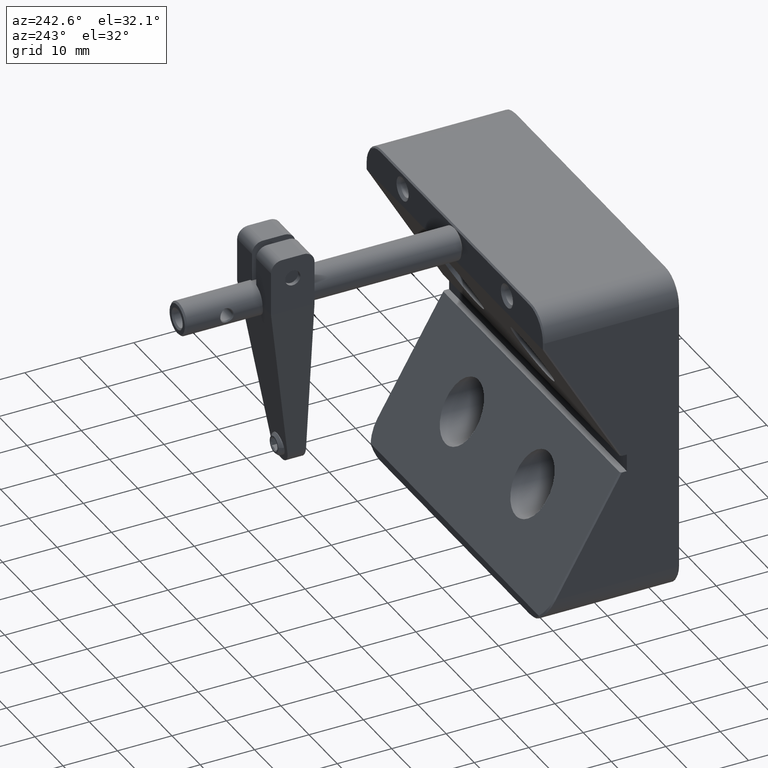
[diagram: clean part render]
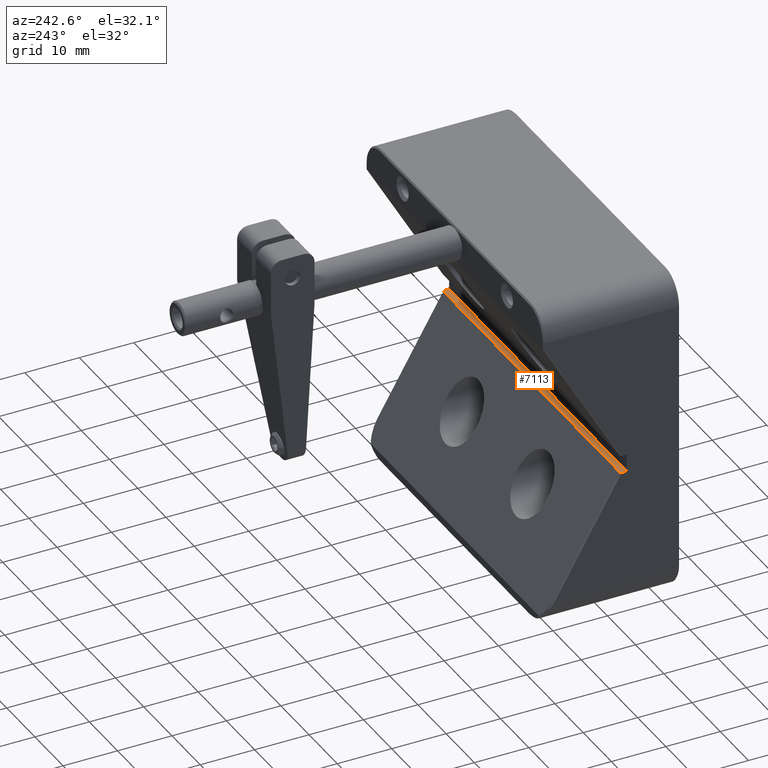
[diagram: same view with one face highlighted and labeled with its STEP entity id]
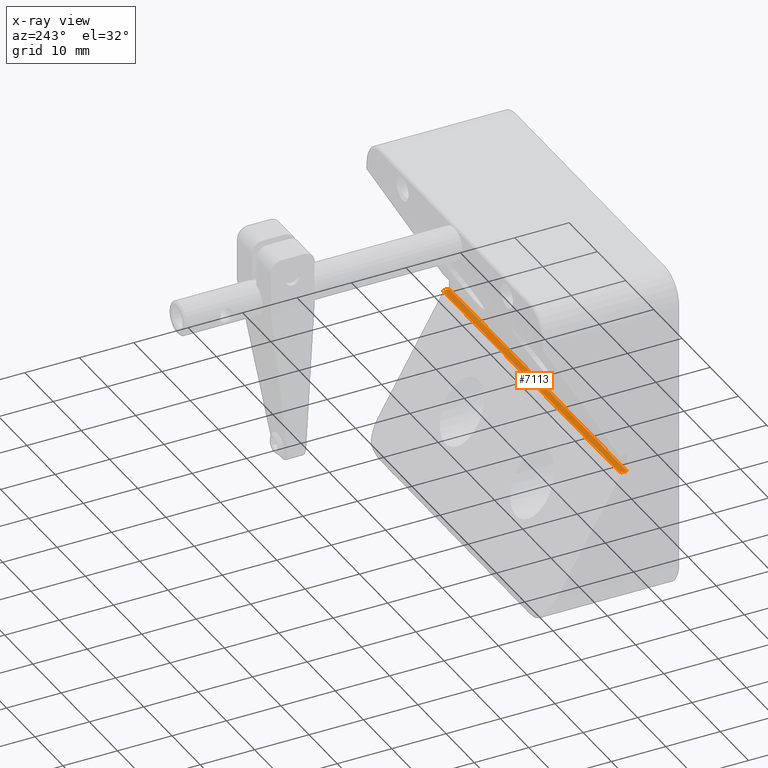
[diagram: x-ray of the same camera — body ghosted, the highlighted face saturated]
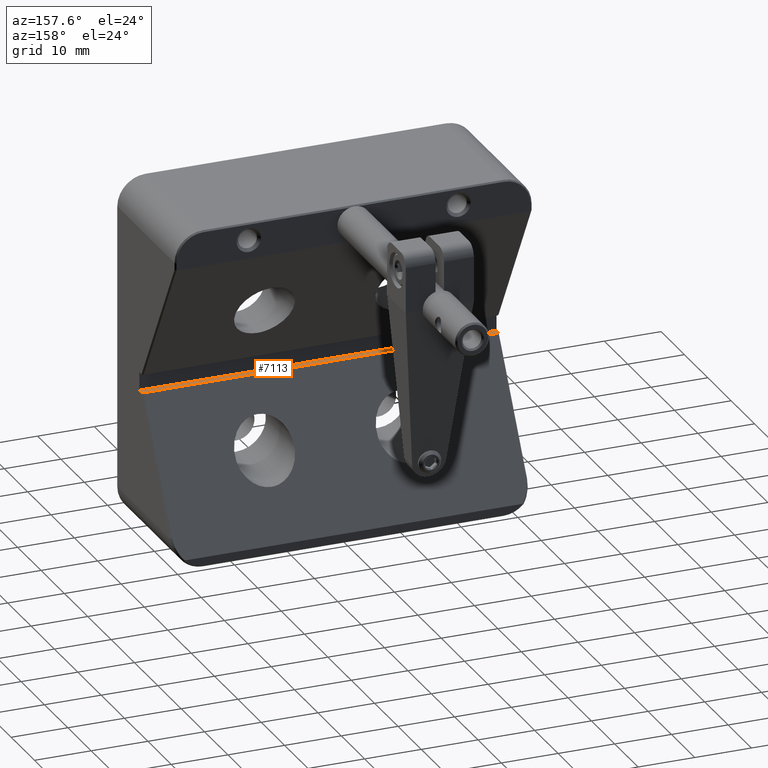
[diagram: same view with one face highlighted and labeled with its STEP entity id]
A machine part, auxiliary view. The second image highlights one B-rep face of the part: STEP entity #7113.
The next image is the same camera in x-ray: the body ghosted, the highlighted face saturated — about 0% of this face is hidden behind the body in this view.
A second angle (auxiliary view) of the same face is appended — the face is thin or edge-on in the first view.
In plain terms, the highlighted planar face has unit normal (0, 0, -1).
Its self-contained STEP definition (entity closure, byte-faithful):
#3 = VERTEX_POINT ( 'NONE', #8503 ) ;
#359 = AXIS2_PLACEMENT_3D ( 'NONE', #7832, #8693, #8662 ) ;
#388 = EDGE_CURVE ( 'NONE', #9334, #4871, #1703, .T. ) ;
#406 = DIRECTION ( 'NONE',  ( -0.6546536707079887440, 0.7559289460184445142, 1.639159611035749782E-15 ) ) ;
#454 = ORIENTED_EDGE ( 'NONE', *, *, #2689, .F. ) ;
#459 = CARTESIAN_POINT ( 'NONE',  ( 31.50000000000000711, -1.876021702821597081, -3.900000000000001243 ) ) ;
#703 = CARTESIAN_POINT ( 'NONE',  ( -31.50000000000000711, -1.876021702821580206, -3.900000000000001243 ) ) ;
#798 = EDGE_CURVE ( 'NONE', #3614, #9334, #5182, .T. ) ;
#900 = CARTESIAN_POINT ( 'NONE',  ( -36.98571428571426623, -8.210378941930512653, -3.900000000000012790 ) ) ;
#1280 = LINE ( 'NONE', #3841, #5951 ) ;
#1381 = CARTESIAN_POINT ( 'NONE',  ( 31.50000000000000711, -1.587346568226877030, -3.900000000000000799 ) ) ;
#1691 = VECTOR ( 'NONE', #6457, 1000.000000000000000 ) ;
#1703 = LINE ( 'NONE', #4897, #3231 ) ;
#1817 = LINE ( 'NONE', #900, #3235 ) ;
#2689 = EDGE_CURVE ( 'NONE', #3, #4871, #1280, .T. ) ;
#3133 = EDGE_LOOP ( 'NONE', ( #454, #8026, #9129, #7815, #9316, #8019 ) ) ;
#3231 = VECTOR ( 'NONE', #406, 1000.000000000000114 ) ;
#3235 = VECTOR ( 'NONE', #6840, 1000.000000000000000 ) ;
#3614 = VERTEX_POINT ( 'NONE', #8330 ) ;
#3841 = CARTESIAN_POINT ( 'NONE',  ( -31.50000000000000711, -1.587346568226842169, -3.900000000000000799 ) ) ;
#4452 = DIRECTION ( 'NONE',  ( -0.0000000000000000000, 1.000000000000000000, 2.168404344971009657E-15 ) ) ;
#4507 = CARTESIAN_POINT ( 'NONE',  ( 31.25000000000000711, -1.587346568226877030, -3.900000000000000799 ) ) ;
#4871 = VERTEX_POINT ( 'NONE', #4507 ) ;
#4897 = CARTESIAN_POINT ( 'NONE',  ( 24.27857142857147466, 6.462565756473978240, -3.899999999999983480 ) ) ;
#5182 = LINE ( 'NONE', #1381, #1691 ) ;
#5425 = DIRECTION ( 'NONE',  ( 1.000000000000000000, -5.551115123125782702E-16, -0.0000000000000000000 ) ) ;
#5690 = PLANE ( 'NONE',  #359 ) ;
#5932 = CARTESIAN_POINT ( 'NONE',  ( -31.50000000000000711, -1.587346568226842169, -3.900000000000000799 ) ) ;
#5951 = VECTOR ( 'NONE', #6778, 1000.000000000000000 ) ;
#6153 = CARTESIAN_POINT ( 'NONE',  ( -31.50000000000000711, -2.787346568226841459, -3.900000000000003464 ) ) ;
#6224 = EDGE_CURVE ( 'NONE', #3, #7281, #1817, .T. ) ;
#6319 = FACE_OUTER_BOUND ( 'NONE', #3133, .T. ) ;
#6457 = DIRECTION ( 'NONE',  ( -0.0000000000000000000, 1.000000000000000000, 2.168404344971009657E-15 ) ) ;
#6778 = DIRECTION ( 'NONE',  ( 1.000000000000000000, -5.551115123125782702E-16, -0.0000000000000000000 ) ) ;
#6840 = DIRECTION ( 'NONE',  ( -0.6546536707079833040, -0.7559289460184490661, -1.639159611035761615E-15 ) ) ;
#6960 = VECTOR ( 'NONE', #5425, 1000.000000000000000 ) ;
#7113 = ADVANCED_FACE ( 'NONE', ( #6319 ), #5690, .F. ) ;
#7281 = VERTEX_POINT ( 'NONE', #703 ) ;
#7515 = VERTEX_POINT ( 'NONE', #8230 ) ;
#7655 = VECTOR ( 'NONE', #4452, 1000.000000000000000 ) ;
#7697 = EDGE_CURVE ( 'NONE', #7515, #3614, #8153, .T. ) ;
#7815 = ORIENTED_EDGE ( 'NONE', *, *, #7697, .T. ) ;
#7832 = CARTESIAN_POINT ( 'NONE',  ( -31.50000000000000711, -1.587346568226842169, -3.900000000000000799 ) ) ;
#8019 = ORIENTED_EDGE ( 'NONE', *, *, #388, .T. ) ;
#8026 = ORIENTED_EDGE ( 'NONE', *, *, #6224, .T. ) ;
#8153 = LINE ( 'NONE', #6153, #6960 ) ;
#8178 = EDGE_CURVE ( 'NONE', #7515, #7281, #8856, .T. ) ;
#8230 = CARTESIAN_POINT ( 'NONE',  ( -31.50000000000000711, -2.787346568226841459, -3.900000000000003464 ) ) ;
#8330 = CARTESIAN_POINT ( 'NONE',  ( 31.50000000000000711, -2.787346568226876542, -3.900000000000003464 ) ) ;
#8503 = CARTESIAN_POINT ( 'NONE',  ( -31.24999999999998934, -1.587346568226842392, -3.900000000000000799 ) ) ;
#8662 = DIRECTION ( 'NONE',  ( 0.0000000000000000000, 1.000000000000000000, 2.168404344971009657E-15 ) ) ;
#8693 = DIRECTION ( 'NONE',  ( 1.203706215242022934E-30, 2.168404344971009657E-15, -1.000000000000000000 ) ) ;
#8856 = LINE ( 'NONE', #5932, #7655 ) ;
#9129 = ORIENTED_EDGE ( 'NONE', *, *, #8178, .F. ) ;
#9316 = ORIENTED_EDGE ( 'NONE', *, *, #798, .T. ) ;
#9334 = VERTEX_POINT ( 'NONE', #459 ) ;